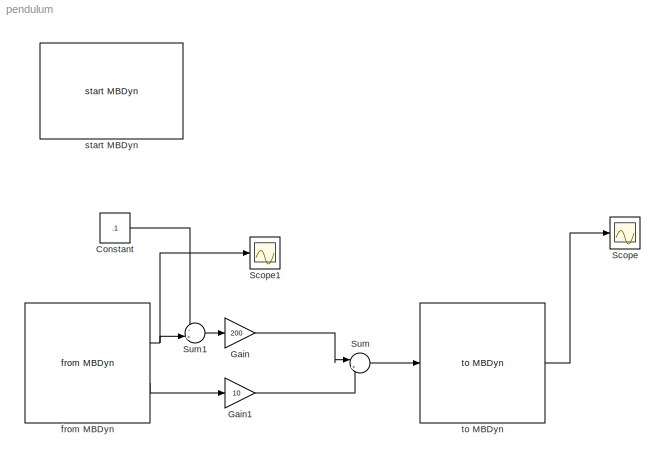
MODEL pendulum
KIND model
BLOCK [Constant] Constant
  OutDataType = sfix(16)
  OutScaling = 2^0
  Value = .1
BLOCK [Gain] Gain
  Gain = 200
  OutDataType = sfix(16)
  OutScaling = 2^0
  ParameterDataType = sfix(16)
  ParameterScaling = 2^0
BLOCK [Gain] Gain1
  Gain = 10
  OutDataType = sfix(16)
  OutScaling = 2^0
  ParameterDataType = sfix(16)
  ParameterScaling = 2^0
BLOCK [Scope] Scope
  DataFormat = StructureWithTime
  Floating = off
  LimitDataPoints = off
  NumInputPorts = 1
  Ports = [1]
  SampleTime = 0
  YMax = 12.5
  YMin = -20
BLOCK [Scope] Scope1
  DataFormat = StructureWithTime
  Floating = off
  LimitDataPoints = off
  NumInputPorts = 1
  Ports = [1]
  SampleTime = 0
  SaveName = ScopeData1
  YMax = 0.175
  YMin = 0
BLOCK [Sum] Sum
  IconShape = round
  InputSameDT = off
  Inputs = |++
  OutDataType = sfix(16)
  OutDataTypeMode = Inherit via internal rule
  OutDataTypeStr = Inherit: Inherit via internal rule
  OutScaling = 2^0
  Ports = [2, 1]
BLOCK [Sum] Sum1
  IconShape = round
  InputSameDT = off
  Inputs = -+|
  OutDataType = sfix(16)
  OutDataTypeMode = Inherit via internal rule
  OutDataTypeStr = Inherit: Inherit via internal rule
  OutScaling = 2^0
  Ports = [2, 1]
BLOCK [Reference] from MBDyn  REF=MBDynCom/from MBDyn
  N_chan = 2
  Ports = [0, 2]
  Priority = 0
  RTAI_flag = off
  Socket_flag = on
  SourceBlock = MBDynCom/from MBDyn
  Tc = 1e-3
  mbdtask = 'MBDTSK'
  mbx = 'MBXINN'
  net = on
  node = '127.0.0.1'
  path = 'tmp/mbdyn.pendulum.out.sock'
  port = 10011
BLOCK [Reference] start MBDyn  REF=MBDynCom/start MBDyn
  Ports = []
  SourceBlock = MBDynCom/start MBDyn
  enable_out = on
  enable_path = on
  input_file = 'examples/pendulum'
  mbdyn_path = './mbdyn.sh'
  output_file = 'tmp/pendulum_controlled'
  pedantic = off
  verbose = off
BLOCK [Reference] to MBDyn  REF=MBDynCom/to MBDyn
  N_chan = 1
  Ports = [1, 1]
  Priority = 0
  RTAI_flag = off
  Socket_flag = on
  SourceBlock = MBDynCom/to MBDyn
  Tc = 1e-3
  mbdtask = 'MBDTSK'
  mbx = 'MBXOUT'
  net = on
  node = '127.0.0.1'
  path = '<path>'
  port = 8005
LINE Constant:1 -> Sum1:1
LINE Gain1:1 -> Sum:2
LINE Gain:1 -> Sum:1
LINE Sum1:1 -> Gain:1
LINE Sum:1 -> to MBDyn:1
NET from MBDyn:1 -> Scope1:1, Sum1:2
LINE from MBDyn:2 -> Gain1:1
LINE to MBDyn:1 -> Scope:1
note: NET lines group one-source signal fan-out (src -> all destinations, sorted); 1:1 wires keep LINE
note: 1 file-system path scrubbed to <path> (not preserved elsewhere — flat text is the only slx artifact)
